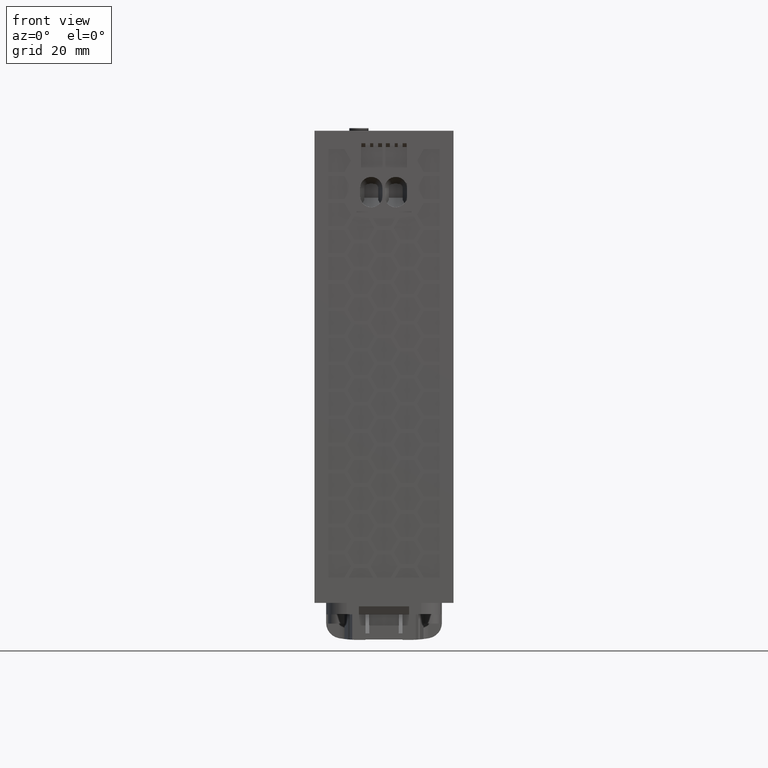
[diagram: clean part render]
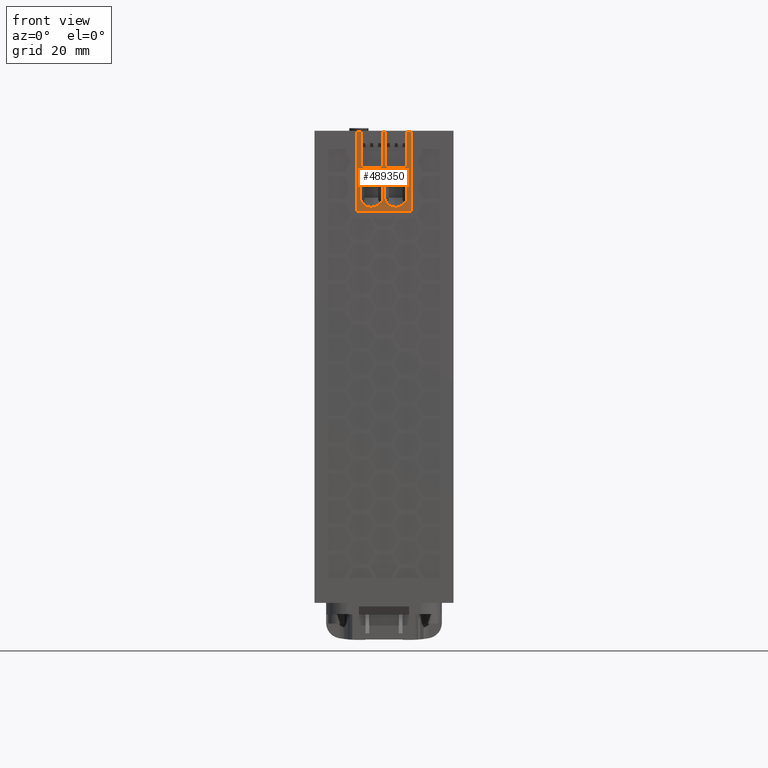
[diagram: same view with one face highlighted and labeled with its STEP entity id]
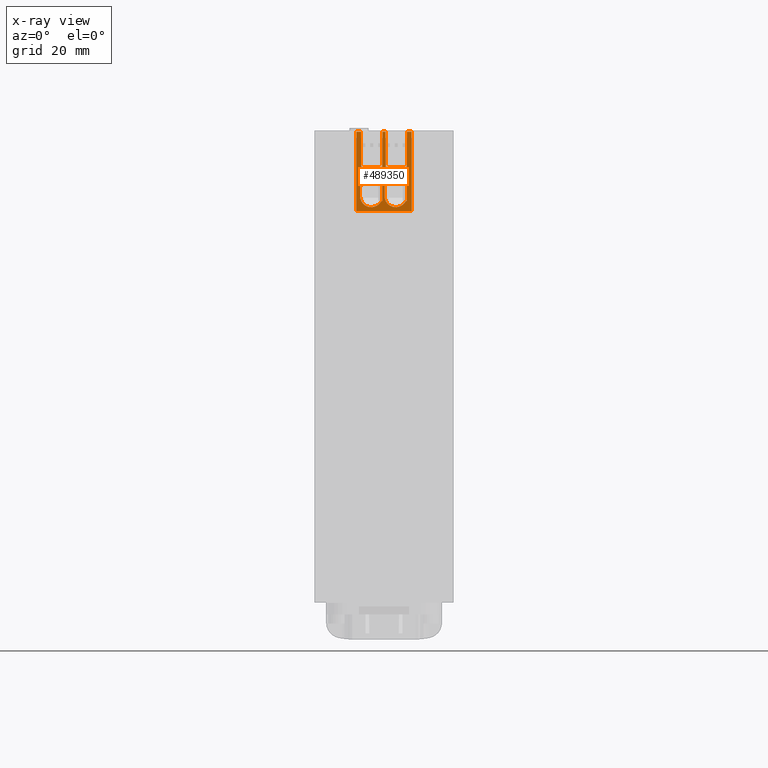
[diagram: x-ray of the same camera — body ghosted, the highlighted face saturated]
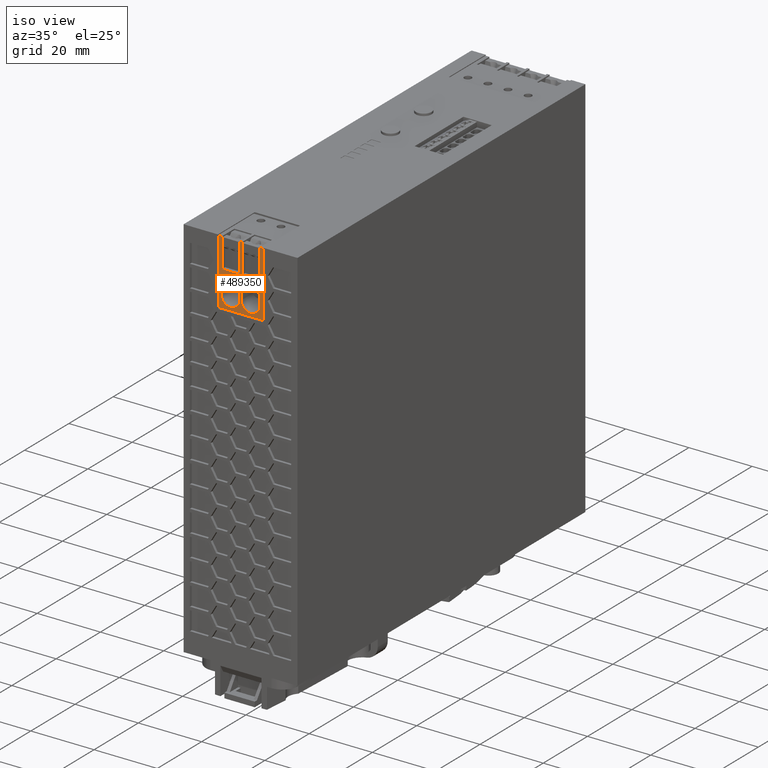
[diagram: same view with one face highlighted and labeled with its STEP entity id]
A machine part, front view. The second image highlights one B-rep face of the part: STEP entity #489350.
The next image is the same camera in x-ray: the body ghosted, the highlighted face saturated — about 0% of this face is hidden behind the body in this view.
A second angle (iso view) of the same face is appended — the face is thin or edge-on in the first view.
In plain terms, the highlighted planar face has unit normal (-0, -1, -0).
Its self-contained STEP definition (entity closure, byte-faithful):
#134840=CARTESIAN_POINT('',(25.1499999986139,0.0999999970269982,
111.00000000089));
#134850=VERTEX_POINT('',#134840);
#134900=CARTESIAN_POINT('',(25.1499999986139,0.0999999970269982,131.2));
#134910=DIRECTION('',(-9.0988189118153E-45,0.,-1.));
#134920=VECTOR('',#134910,1.);
#134930=LINE('',#134900,#134920);
#134940=CARTESIAN_POINT('',(25.1499999986139,0.0999999970269982,
131.600000006033));
#134950=VERTEX_POINT('',#134940);
#134960=EDGE_CURVE('',#134950,#134850,#134930,.T.);
#483960=CARTESIAN_POINT('',(10.8499999986139,0.0999999970269982,
131.600000006033));
#483970=VERTEX_POINT('',#483960);
#484000=CARTESIAN_POINT('',(10.8499999986139,0.0999999970269982,131.2));
#484010=DIRECTION('',(-9.0988189118153E-45,0.,-1.));
#484020=VECTOR('',#484010,1.);
#484030=LINE('',#484000,#484020);
#484040=CARTESIAN_POINT('',(10.8499999986139,0.0999999970269982,
111.00000000089));
#484050=VERTEX_POINT('',#484040);
#484060=EDGE_CURVE('',#483970,#484050,#484030,.T.);
#484710=CARTESIAN_POINT('',(0.,0.0999999970269982,111.00000000089));
#484720=DIRECTION('',(-1.,-2.24255458325516E-60,0.));
#484730=VECTOR('',#484720,1.);
#484740=LINE('',#484710,#484730);
#484750=EDGE_CURVE('',#134850,#484050,#484740,.T.);
#485390=CARTESIAN_POINT('',(12.0486736042336,0.0999999970269982,
131.600000006033));
#485400=VERTEX_POINT('',#485390);
#485430=CARTESIAN_POINT('',(0.,0.0999999970269982,131.600000006033));
#485440=DIRECTION('',(-1.,-2.24255458325516E-60,0.));
#485450=VECTOR('',#485440,1.);
#485460=LINE('',#485430,#485450);
#485470=EDGE_CURVE('',#485400,#483970,#485460,.T.);
#485570=CARTESIAN_POINT('',(0.,0.0999999970269982,131.600000006033));
#485580=DIRECTION('',(1.,2.24255458325516E-60,0.));
#485590=VECTOR('',#485580,1.);
#485600=LINE('',#485570,#485590);
#485610=CARTESIAN_POINT('',(23.9486736042736,0.0999999970269982,
131.600000006033));
#485620=VERTEX_POINT('',#485610);
#485630=EDGE_CURVE('',#485620,#134950,#485600,.T.);
#485850=CARTESIAN_POINT('',(18.3986736042336,0.0999999970269982,
131.600000006033));
#485860=VERTEX_POINT('',#485850);
#485890=CARTESIAN_POINT('',(-9.31102879758637,0.0999999970269982,
131.600000006033));
#485900=DIRECTION('',(-1.,-2.24255458325516E-60,7.31667572330088E-115));
#485910=VECTOR('',#485900,1.);
#485920=LINE('',#485890,#485910);
#485930=CARTESIAN_POINT('',(17.5986736042336,0.0999999970269982,
131.600000006033));
#485940=VERTEX_POINT('',#485930);
#485950=EDGE_CURVE('',#485860,#485940,#485920,.T.);
#487700=CARTESIAN_POINT('',(10.9111685642384,0.0999999970269982,
132.115005046161));
#487710=DIRECTION('',(2.24255458325516E-60,-1.,8.25169179145505E-294));
#487720=DIRECTION('',(3.6795946252855E-234,-0.,-1.));
#487730=AXIS2_PLACEMENT_3D('',#487700,#487710,#487720);
#487740=PLANE('',#487730);
#487750=CARTESIAN_POINT('',(18.0320376464835,0.0999999970269982,
119.2118408996));
#487760=DIRECTION('',(2.24255458325516E-60,-1.,0.));
#487770=DIRECTION('',(3.6795946252855E-234,-0.,-1.));
#487780=AXIS2_PLACEMENT_3D('',#487750,#487760,#487770);
#487790=CIRCLE('',#487780,1.09999999999979);
#487800=CARTESIAN_POINT('',(17.1153625347077,0.0999999970269982,
118.603805753041));
#487810=VERTEX_POINT('',#487800);
#487820=CARTESIAN_POINT('',(17.5986736035338,0.0999999970269982,
118.200804003004));
#487830=VERTEX_POINT('',#487820);
#487840=EDGE_CURVE('',#487810,#487830,#487790,.T.);
#487850=ORIENTED_EDGE('',*,*,#487840,.T.);
#487860=CARTESIAN_POINT('',(14.6986736036437,0.0999999970269982,
117.00080400301));
#487870=DIRECTION('',(2.24255458325516E-60,-1.,0.));
#487880=DIRECTION('',(3.6795946252855E-234,-0.,-1.));
#487890=AXIS2_PLACEMENT_3D('',#487860,#487870,#487880);
#487900=CIRCLE('',#487890,2.89999999987399);
#487910=CARTESIAN_POINT('',(11.7986736037697,0.0999999970269982,
117.000804002954));
#487920=VERTEX_POINT('',#487910);
#487930=EDGE_CURVE('',#487810,#487920,#487900,.T.);
#487940=ORIENTED_EDGE('',*,*,#487930,.F.);
#487950=CARTESIAN_POINT('',(11.7986736036736,0.0999999970269982,
158.71117177515));
#487960=DIRECTION('',(3.6795946252855E-234,-0.,-1.));
#487970=VECTOR('',#487960,1.);
#487980=LINE('',#487950,#487970);
#487990=CARTESIAN_POINT('',(11.7986736036666,0.0999999970269982,
114.950804002217));
#488000=VERTEX_POINT('',#487990);
#488010=EDGE_CURVE('',#487920,#488000,#487980,.T.);
#488020=ORIENTED_EDGE('',*,*,#488010,.F.);
#488030=CARTESIAN_POINT('',(14.6986736036667,0.0999999970269982,
114.950804003011));
#488040=DIRECTION('',(2.24255458325516E-60,-1.,0.));
#488050=DIRECTION('',(3.6795946252855E-234,-0.,-1.));
#488060=AXIS2_PLACEMENT_3D('',#488030,#488040,#488050);
#488070=CIRCLE('',#488060,2.90000000000006);
#488080=CARTESIAN_POINT('',(17.1153625347548,0.0999999970269982,
113.347802252635));
#488090=VERTEX_POINT('',#488080);
#488100=EDGE_CURVE('',#488000,#488090,#488070,.T.);
#488110=ORIENTED_EDGE('',*,*,#488100,.F.);
#488120=CARTESIAN_POINT('',(18.0320376464731,0.0999999970269982,
112.73976710599));
#488130=DIRECTION('',(2.24255458325516E-60,-1.,0.));
#488140=DIRECTION('',(3.6795946252855E-234,-0.,-1.));
#488150=AXIS2_PLACEMENT_3D('',#488120,#488130,#488140);
#488160=CIRCLE('',#488150,1.09999999999916);
#488170=CARTESIAN_POINT('',(17.5986736035337,0.0999999970269982,
113.75080400259));
#488180=VERTEX_POINT('',#488170);
#488190=EDGE_CURVE('',#488180,#488090,#488160,.T.);
#488200=ORIENTED_EDGE('',*,*,#488190,.T.);
#488210=CARTESIAN_POINT('',(17.5986736035339,0.0999999970269982,
158.71117177515));
#488220=DIRECTION('',(3.6795946252855E-234,-0.,-1.));
#488230=VECTOR('',#488220,1.);
#488240=LINE('',#488210,#488230);
#488250=EDGE_CURVE('',#487830,#488180,#488240,.T.);
#488260=ORIENTED_EDGE('',*,*,#488250,.T.);
#488270=EDGE_LOOP('',(#488260,#488200,#488110,#488020,#487940,#487850));
#488280=FACE_BOUND('',#488270,.T.);
#488290=CARTESIAN_POINT('',(21.0486736036667,0.0999999970269982,
114.950804003011));
#488300=DIRECTION('',(2.24255458325516E-60,-1.,0.));
#488310=DIRECTION('',(3.6795946252855E-234,-0.,-1.));
#488320=AXIS2_PLACEMENT_3D('',#488290,#488300,#488310);
#488330=CIRCLE('',#488320,2.90000000000001);
#488340=CARTESIAN_POINT('',(18.1486736036667,0.0999999970269982,
114.950804002217));
#488350=VERTEX_POINT('',#488340);
#488360=CARTESIAN_POINT('',(23.4653625345605,0.0999999970269982,
113.347802252763));
#488370=VERTEX_POINT('',#488360);
#488380=EDGE_CURVE('',#488350,#488370,#488330,.T.);
#488390=ORIENTED_EDGE('',*,*,#488380,.F.);
#488400=CARTESIAN_POINT('',(24.3820376464741,0.0999999970269982,
112.739767105989));
#488410=DIRECTION('',(2.24255458325516E-60,-1.,0.));
#488420=DIRECTION('',(3.6795946252855E-234,-0.,-1.));
#488430=AXIS2_PLACEMENT_3D('',#488400,#488410,#488420);
#488440=CIRCLE('',#488430,1.10000000000069);
#488450=CARTESIAN_POINT('',(23.9486736035337,0.0999999970269982,
113.75080400259));
#488460=VERTEX_POINT('',#488450);
#488470=EDGE_CURVE('',#488460,#488370,#488440,.T.);
#488480=ORIENTED_EDGE('',*,*,#488470,.T.);
#488490=CARTESIAN_POINT('',(23.9486736035339,0.0999999970269982,
158.71117177515));
#488500=DIRECTION('',(3.6795946252855E-234,-0.,-1.));
#488510=VECTOR('',#488500,1.);
#488520=LINE('',#488490,#488510);
#488530=CARTESIAN_POINT('',(23.9486736035327,0.0999999970269982,
118.200804003004));
#488540=VERTEX_POINT('',#488530);
#488550=EDGE_CURVE('',#488540,#488460,#488520,.T.);
#488560=ORIENTED_EDGE('',*,*,#488550,.T.);
#488570=CARTESIAN_POINT('',(24.382037646484,0.0999999970269982,
119.2118408996));
#488580=DIRECTION('',(2.24255458325516E-60,-1.,0.));
#488590=DIRECTION('',(3.6795946252855E-234,-0.,-1.));
#488600=AXIS2_PLACEMENT_3D('',#488570,#488580,#488590);
#488610=CIRCLE('',#488600,1.10000000000048);
#488620=CARTESIAN_POINT('',(23.4653625345839,0.0999999970269982,
118.603805752959));
#488630=VERTEX_POINT('',#488620);
#488640=EDGE_CURVE('',#488630,#488540,#488610,.T.);
#488650=ORIENTED_EDGE('',*,*,#488640,.T.);
#488660=CARTESIAN_POINT('',(21.0486736036437,0.0999999970269982,
117.00080400301));
#488670=DIRECTION('',(2.24255458325516E-60,-1.,0.));
#488680=DIRECTION('',(3.6795946252855E-234,-0.,-1.));
#488690=AXIS2_PLACEMENT_3D('',#488660,#488670,#488680);
#488700=CIRCLE('',#488690,2.89999999987401);
#488710=CARTESIAN_POINT('',(18.1486736037697,0.0999999970269982,
117.000804003009));
#488720=VERTEX_POINT('',#488710);
#488730=EDGE_CURVE('',#488630,#488720,#488700,.T.);
#488740=ORIENTED_EDGE('',*,*,#488730,.F.);
#488750=CARTESIAN_POINT('',(18.1486736036736,0.0999999970269982,
158.71117177515));
#488760=DIRECTION('',(3.6795946252855E-234,-0.,-1.));
#488770=VECTOR('',#488760,1.);
#488780=LINE('',#488750,#488770);
#488790=EDGE_CURVE('',#488720,#488350,#488780,.T.);
#488800=ORIENTED_EDGE('',*,*,#488790,.F.);
#488810=EDGE_LOOP('',(#488800,#488740,#488650,#488560,#488480,#488390));
#488820=FACE_BOUND('',#488810,.T.);
#488830=ORIENTED_EDGE('',*,*,#484060,.T.);
#488840=ORIENTED_EDGE('',*,*,#485470,.T.);
#488850=CARTESIAN_POINT('',(12.0486736042336,0.0999999970269982,
158.71117177515));
#488860=DIRECTION('',(-3.6795946252855E-234,0.,1.));
#488870=VECTOR('',#488860,1.);
#488880=LINE('',#488850,#488870);
#488890=CARTESIAN_POINT('',(12.0486736042336,0.0999999970269982,
122.25000000089));
#488900=VERTEX_POINT('',#488890);
#488910=EDGE_CURVE('',#488900,#485400,#488880,.T.);
#488920=ORIENTED_EDGE('',*,*,#488910,.T.);
#488930=CARTESIAN_POINT('',(-9.31102879758637,0.0999999970269982,
122.25000000089));
#488940=DIRECTION('',(1.,2.24255458325516E-60,-7.31667572330088E-115));
#488950=VECTOR('',#488940,1.);
#488960=LINE('',#488930,#488950);
#488970=CARTESIAN_POINT('',(17.5986736042336,0.0999999970269982,
122.25000000089));
#488980=VERTEX_POINT('',#488970);
#488990=EDGE_CURVE('',#488900,#488980,#488960,.T.);
#489000=ORIENTED_EDGE('',*,*,#488990,.F.);
#489010=CARTESIAN_POINT('',(17.5986736042336,0.0999999970269982,
158.71117177515));
#489020=DIRECTION('',(-3.6795946252855E-234,0.,1.));
#489030=VECTOR('',#489020,1.);
#489040=LINE('',#489010,#489030);
#489050=EDGE_CURVE('',#488980,#485940,#489040,.T.);
#489060=ORIENTED_EDGE('',*,*,#489050,.F.);
#489070=ORIENTED_EDGE('',*,*,#485950,.T.);
#489080=CARTESIAN_POINT('',(18.3986736042336,0.0999999970269982,
158.71117177515));
#489090=DIRECTION('',(-3.6795946252855E-234,0.,1.));
#489100=VECTOR('',#489090,1.);
#489110=LINE('',#489080,#489100);
#489120=CARTESIAN_POINT('',(18.3986736042336,0.0999999970269982,
122.25000000089));
#489130=VERTEX_POINT('',#489120);
#489140=EDGE_CURVE('',#489130,#485860,#489110,.T.);
#489150=ORIENTED_EDGE('',*,*,#489140,.T.);
#489160=CARTESIAN_POINT('',(-9.31102879758637,0.0999999970269982,
122.25000000089));
#489170=DIRECTION('',(1.,2.24255458325516E-60,-7.31667572330088E-115));
#489180=VECTOR('',#489170,1.);
#489190=LINE('',#489160,#489180);
#489200=CARTESIAN_POINT('',(23.9486736042736,0.0999999970269982,
122.25000000089));
#489210=VERTEX_POINT('',#489200);
#489220=EDGE_CURVE('',#489130,#489210,#489190,.T.);
#489230=ORIENTED_EDGE('',*,*,#489220,.F.);
#489240=CARTESIAN_POINT('',(23.9486736042736,0.0999999970269982,
158.71117177515));
#489250=DIRECTION('',(-3.6795946252855E-234,0.,1.));
#489260=VECTOR('',#489250,1.);
#489270=LINE('',#489240,#489260);
#489280=EDGE_CURVE('',#489210,#485620,#489270,.T.);
#489290=ORIENTED_EDGE('',*,*,#489280,.F.);
#489300=ORIENTED_EDGE('',*,*,#485630,.F.);
#489310=ORIENTED_EDGE('',*,*,#134960,.F.);
#489320=ORIENTED_EDGE('',*,*,#484750,.F.);
#489330=EDGE_LOOP('',(#489320,#489310,#489300,#489290,#489230,#489150,
#489070,#489060,#489000,#488920,#488840,#488830));
#489340=FACE_OUTER_BOUND('',#489330,.T.);
#489350=ADVANCED_FACE('',(#488280,#488820,#489340),#487740,.T.);